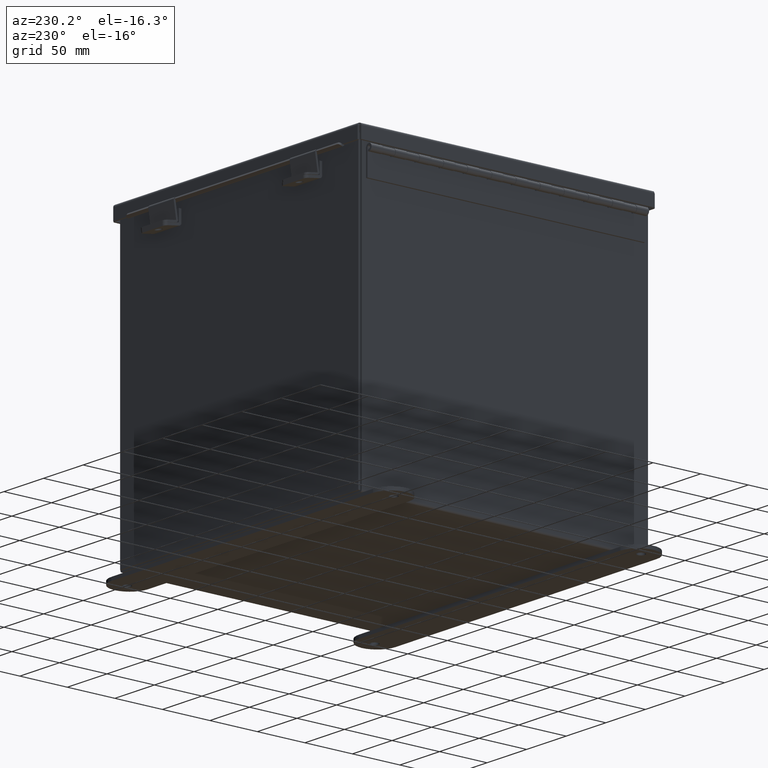
[diagram: clean part render]
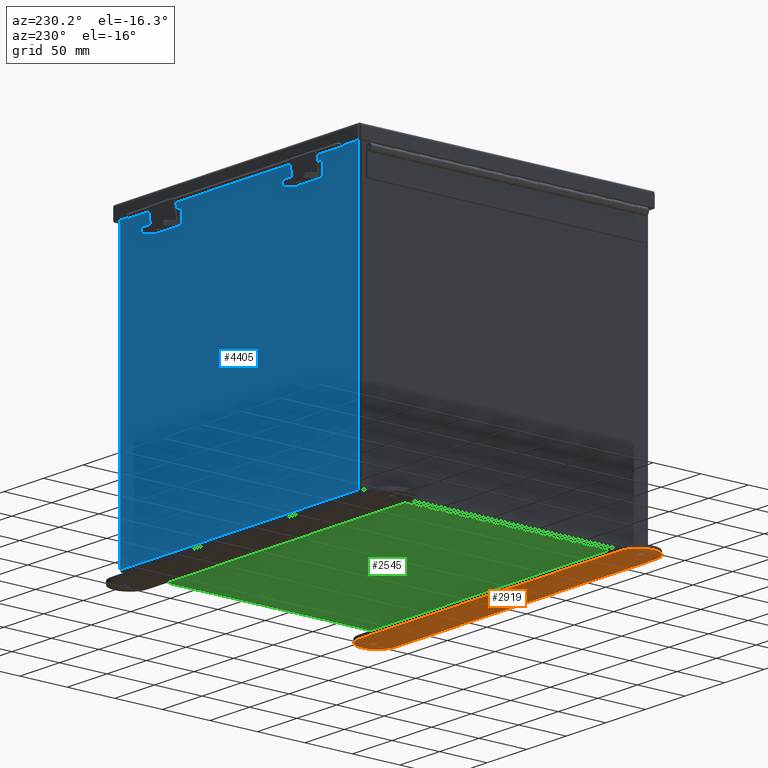
[diagram: same view with three faces highlighted in distinct colors, each labeled with its STEP entity id]
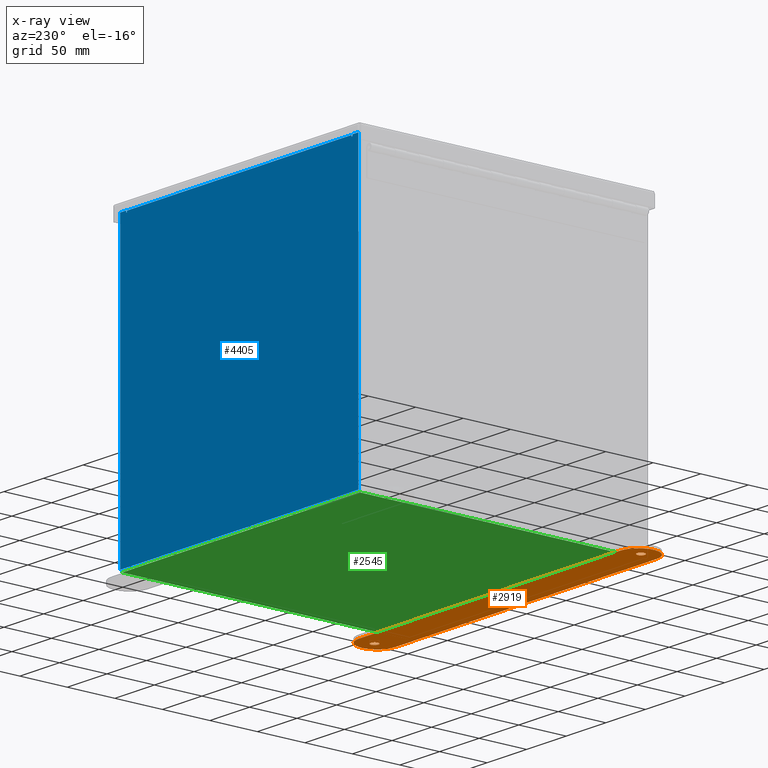
[diagram: x-ray of the same camera — body ghosted, the three highlighted faces saturated]
A machine part, auxiliary view with three faces highlighted in distinct colors.
The next image is the same camera in x-ray (body ghosted, the three faces saturated) — at least one of them is partly hidden behind the body in this view.
Their STEP definitions:

[orange] entity #2919 — the highlighted planar face has unit normal (0, 0, -1).
#137 = EDGE_CURVE ( 'NONE', #4159, #7635, #5931, .T. ) ;
#167 = DIRECTION ( 'NONE',  ( -1.000000000000000000, 0.0000000000000000000, 0.0000000000000000000 ) ) ;
#220 = FACE_OUTER_BOUND ( 'NONE', #10847, .T. ) ;
#361 = EDGE_CURVE ( 'NONE', #15255, #7829, #3553, .T. ) ;
#790 = DIRECTION ( 'NONE',  ( 0.0000000000000000000, 0.0000000000000000000, 1.000000000000000000 ) ) ;
#1419 = VERTEX_POINT ( 'NONE', #9755 ) ;
#1526 = DIRECTION ( 'NONE',  ( 0.0000000000000000000, 0.0000000000000000000, -1.000000000000000000 ) ) ;
#1582 = EDGE_LOOP ( 'NONE', ( #10873, #9685 ) ) ;
#2477 = ORIENTED_EDGE ( 'NONE', *, *, #11376, .F. ) ;
#2882 = DIRECTION ( 'NONE',  ( -1.000000000000000000, 0.0000000000000000000, 0.0000000000000000000 ) ) ;
#2919 = ADVANCED_FACE ( 'NONE', ( #220, #9912, #3330 ), #3342, .T. ) ;
#3089 = EDGE_CURVE ( 'NONE', #4683, #7867, #13599, .T. ) ;
#3099 = EDGE_CURVE ( 'NONE', #7635, #4159, #5158, .T. ) ;
#3265 = CIRCLE ( 'NONE', #12278, 0.7499999999999993300 ) ;
#3280 = DIRECTION ( 'NONE',  ( 0.0000000000000000000, 0.0000000000000000000, -1.000000000000000000 ) ) ;
#3330 = FACE_BOUND ( 'NONE', #7453, .T. ) ;
#3342 = PLANE ( 'NONE',  #7942 ) ;
#3364 = AXIS2_PLACEMENT_3D ( 'NONE', #7463, #3280, #2882 ) ;
#3553 = CIRCLE ( 'NONE', #6623, 0.7500000000000015500 ) ;
#3605 = CIRCLE ( 'NONE', #5114, 0.1564999999999992800 ) ;
#4014 = CARTESIAN_POINT ( 'NONE',  ( 6.468500000000001500, 0.4120940649496078200, -0.1345000000000000100 ) ) ;
#4102 = CARTESIAN_POINT ( 'NONE',  ( -6.625000000000000900, 0.4120940649496078200, -0.1345000000000000100 ) ) ;
#4131 = DIRECTION ( 'NONE',  ( 1.000000000000000000, -1.260852920152736700E-016, 0.0000000000000000000 ) ) ;
#4159 = VERTEX_POINT ( 'NONE', #8085 ) ;
#4240 = CARTESIAN_POINT ( 'NONE',  ( 6.500000000000000000, -0.3379059350503894100, -0.1345000000000000100 ) ) ;
#4506 = CARTESIAN_POINT ( 'NONE',  ( 6.500000000000000000, 0.4120940649496122000, -0.1345000000000000100 ) ) ;
#4683 = VERTEX_POINT ( 'NONE', #5246 ) ;
#5019 = CARTESIAN_POINT ( 'NONE',  ( 6.500000000000000000, 0.4120940649496122000, -0.1345000000000000100 ) ) ;
#5114 = AXIS2_PLACEMENT_3D ( 'NONE', #11142, #1526, #14580 ) ;
#5158 = CIRCLE ( 'NONE', #14461, 0.1564999999999992800 ) ;
#5246 = CARTESIAN_POINT ( 'NONE',  ( -6.500000000000000000, -0.3379059350503871900, -0.1345000000000000100 ) ) ;
#5292 = CARTESIAN_POINT ( 'NONE',  ( 6.781499999999999400, 0.4120940649496078200, -0.1345000000000000100 ) ) ;
#5294 = EDGE_CURVE ( 'NONE', #15406, #10562, #14594, .T. ) ;
#5731 = CARTESIAN_POINT ( 'NONE',  ( -6.625000000000000900, 0.4120940649496078200, -0.1345000000000000100 ) ) ;
#5931 = CIRCLE ( 'NONE', #6911, 0.1564999999999992800 ) ;
#6623 = AXIS2_PLACEMENT_3D ( 'NONE', #13944, #790, #10002 ) ;
#6823 = CARTESIAN_POINT ( 'NONE',  ( -6.781499999999999400, 0.4120940649496078200, -0.1345000000000000100 ) ) ;
#6911 = AXIS2_PLACEMENT_3D ( 'NONE', #5731, #13479, #15629 ) ;
#6970 = VECTOR ( 'NONE', #8971, 39.37007874015748100 ) ;
#7014 = CARTESIAN_POINT ( 'NONE',  ( -6.500000000000000000, -0.3379059350503871900, -0.1345000000000000100 ) ) ;
#7453 = EDGE_LOOP ( 'NONE', ( #13866, #8876 ) ) ;
#7463 = CARTESIAN_POINT ( 'NONE',  ( 6.625000000000000900, 0.4120940649496078200, -0.1345000000000000100 ) ) ;
#7495 = EDGE_CURVE ( 'NONE', #1419, #4683, #3265, .T. ) ;
#7635 = VERTEX_POINT ( 'NONE', #6823 ) ;
#7829 = VERTEX_POINT ( 'NONE', #9958 ) ;
#7867 = VERTEX_POINT ( 'NONE', #4240 ) ;
#7942 = AXIS2_PLACEMENT_3D ( 'NONE', #4506, #14165, #12973 ) ;
#8085 = CARTESIAN_POINT ( 'NONE',  ( -6.468500000000001500, 0.4120940649496078200, -0.1345000000000000100 ) ) ;
#8191 = EDGE_CURVE ( 'NONE', #7867, #15255, #13729, .T. ) ;
#8338 = VECTOR ( 'NONE', #4131, 39.37007874015748100 ) ;
#8876 = ORIENTED_EDGE ( 'NONE', *, *, #5294, .F. ) ;
#8971 = DIRECTION ( 'NONE',  ( -1.000000000000000000, -1.260852920152736700E-016, 0.0000000000000000000 ) ) ;
#9685 = ORIENTED_EDGE ( 'NONE', *, *, #3099, .T. ) ;
#9755 = CARTESIAN_POINT ( 'NONE',  ( -6.500000000000000000, 1.162094064949612800, -0.1345000000000000100 ) ) ;
#9912 = FACE_BOUND ( 'NONE', #1582, .T. ) ;
#9958 = CARTESIAN_POINT ( 'NONE',  ( 6.500000000000000000, 1.162094064949613600, -0.1345000000000000100 ) ) ;
#10002 = DIRECTION ( 'NONE',  ( -1.000000000000000000, 0.0000000000000000000, 0.0000000000000000000 ) ) ;
#10300 = CARTESIAN_POINT ( 'NONE',  ( -6.500000000000000000, 0.4120940649496122000, -0.1345000000000000100 ) ) ;
#10425 = DIRECTION ( 'NONE',  ( 1.000000000000000000, 0.0000000000000000000, 0.0000000000000000000 ) ) ;
#10521 = ORIENTED_EDGE ( 'NONE', *, *, #361, .F. ) ;
#10562 = VERTEX_POINT ( 'NONE', #5292 ) ;
#10847 = EDGE_LOOP ( 'NONE', ( #10964, #11973, #12218, #2477, #10521 ) ) ;
#10873 = ORIENTED_EDGE ( 'NONE', *, *, #137, .T. ) ;
#10952 = DIRECTION ( 'NONE',  ( 0.0000000000000000000, 0.0000000000000000000, 1.000000000000000000 ) ) ;
#10964 = ORIENTED_EDGE ( 'NONE', *, *, #8191, .F. ) ;
#11142 = CARTESIAN_POINT ( 'NONE',  ( 6.625000000000000900, 0.4120940649496078200, -0.1345000000000000100 ) ) ;
#11192 = EDGE_CURVE ( 'NONE', #10562, #15406, #3605, .T. ) ;
#11376 = EDGE_CURVE ( 'NONE', #7829, #1419, #13438, .T. ) ;
#11614 = CARTESIAN_POINT ( 'NONE',  ( 7.250000000000001800, 0.4120940649496122000, -0.1345000000000000100 ) ) ;
#11973 = ORIENTED_EDGE ( 'NONE', *, *, #3089, .F. ) ;
#12218 = ORIENTED_EDGE ( 'NONE', *, *, #7495, .F. ) ;
#12278 = AXIS2_PLACEMENT_3D ( 'NONE', #10300, #10952, #10425 ) ;
#12973 = DIRECTION ( 'NONE',  ( -1.000000000000000000, 0.0000000000000000000, 0.0000000000000000000 ) ) ;
#13105 = DIRECTION ( 'NONE',  ( -1.000000000000000000, 0.0000000000000000000, 0.0000000000000000000 ) ) ;
#13290 = AXIS2_PLACEMENT_3D ( 'NONE', #5019, #15108, #167 ) ;
#13438 = LINE ( 'NONE', #14602, #6970 ) ;
#13479 = DIRECTION ( 'NONE',  ( -0.0000000000000000000, -0.0000000000000000000, 1.000000000000000000 ) ) ;
#13599 = LINE ( 'NONE', #7014, #8338 ) ;
#13729 = CIRCLE ( 'NONE', #13290, 0.7500000000000015500 ) ;
#13866 = ORIENTED_EDGE ( 'NONE', *, *, #11192, .F. ) ;
#13944 = CARTESIAN_POINT ( 'NONE',  ( 6.500000000000000000, 0.4120940649496122000, -0.1345000000000000100 ) ) ;
#14165 = DIRECTION ( 'NONE',  ( 0.0000000000000000000, 0.0000000000000000000, -1.000000000000000000 ) ) ;
#14461 = AXIS2_PLACEMENT_3D ( 'NONE', #4102, #15027, #13105 ) ;
#14580 = DIRECTION ( 'NONE',  ( -1.000000000000000000, 0.0000000000000000000, 0.0000000000000000000 ) ) ;
#14594 = CIRCLE ( 'NONE', #3364, 0.1564999999999992800 ) ;
#14602 = CARTESIAN_POINT ( 'NONE',  ( -6.500000000000000000, 1.162094064949612800, -0.1345000000000000100 ) ) ;
#15027 = DIRECTION ( 'NONE',  ( -0.0000000000000000000, -0.0000000000000000000, 1.000000000000000000 ) ) ;
#15108 = DIRECTION ( 'NONE',  ( 0.0000000000000000000, 0.0000000000000000000, 1.000000000000000000 ) ) ;
#15255 = VERTEX_POINT ( 'NONE', #11614 ) ;
#15406 = VERTEX_POINT ( 'NONE', #4014 ) ;
#15629 = DIRECTION ( 'NONE',  ( -1.000000000000000000, 0.0000000000000000000, 0.0000000000000000000 ) ) ;

[blue] entity #4405 — the highlighted planar face has unit normal (0, -1, 0).
#135 = VERTEX_POINT ( 'NONE', #6203 ) ;
#311 = VERTEX_POINT ( 'NONE', #2651 ) ;
#589 = CARTESIAN_POINT ( 'NONE',  ( 5.582299999999999200, 0.0000000000000000000, 5.874949999999999200 ) ) ;
#638 = CARTESIAN_POINT ( 'NONE',  ( 5.925300000000000000, 0.0000000000000000000, 5.925300000000000000 ) ) ;
#813 = VECTOR ( 'NONE', #10334, 39.37007874015748100 ) ;
#856 = ORIENTED_EDGE ( 'NONE', *, *, #8754, .F. ) ;
#966 = VERTEX_POINT ( 'NONE', #12940 ) ;
#1051 = DIRECTION ( 'NONE',  ( 1.000000000000000000, 0.0000000000000000000, 0.0000000000000000000 ) ) ;
#1157 = DIRECTION ( 'NONE',  ( 1.000000000000000000, 0.0000000000000000000, -1.844192188523290300E-016 ) ) ;
#1237 = DIRECTION ( 'NONE',  ( 0.0000000000000000000, 0.0000000000000000000, -1.000000000000000000 ) ) ;
#1470 = EDGE_CURVE ( 'NONE', #5878, #12349, #13820, .T. ) ;
#1483 = CARTESIAN_POINT ( 'NONE',  ( 5.600975000000000000, 0.0000000000000000000, 5.874949999999999200 ) ) ;
#1527 = EDGE_CURVE ( 'NONE', #966, #135, #6087, .T. ) ;
#1635 = VECTOR ( 'NONE', #1051, 39.37007874015748100 ) ;
#1917 = ORIENTED_EDGE ( 'NONE', *, *, #14123, .T. ) ;
#2089 = CARTESIAN_POINT ( 'NONE',  ( 5.582300000000000000, 0.0000000000000000000, 5.912300000000000100 ) ) ;
#2514 = DIRECTION ( 'NONE',  ( 0.0000000000000000000, 0.0000000000000000000, -1.000000000000000000 ) ) ;
#2589 = DIRECTION ( 'NONE',  ( 0.0000000000000000000, 0.0000000000000000000, -1.000000000000000000 ) ) ;
#2651 = CARTESIAN_POINT ( 'NONE',  ( 5.925300000000000000, 0.0000000000000000000, -5.925300000000001800 ) ) ;
#2665 = EDGE_CURVE ( 'NONE', #9450, #135, #14262, .T. ) ;
#3318 = CARTESIAN_POINT ( 'NONE',  ( -5.582299999999999200, 0.0000000000000000000, 0.0000000000000000000 ) ) ;
#3904 = CARTESIAN_POINT ( 'NONE',  ( 5.619649999999999100, 0.0000000000000000000, 5.925300000000000000 ) ) ;
#4069 = EDGE_CURVE ( 'NONE', #11234, #5878, #14242, .T. ) ;
#4197 = DIRECTION ( 'NONE',  ( 0.0000000000000000000, 0.0000000000000000000, -1.000000000000000000 ) ) ;
#4405 = ADVANCED_FACE ( 'NONE', ( #9520 ), #7876, .F. ) ;
#4496 = LINE ( 'NONE', #10256, #4931 ) ;
#4645 = CARTESIAN_POINT ( 'NONE',  ( -5.582299999999999200, 1.092739197465705300E-015, 5.912300000000006300 ) ) ;
#4789 = ORIENTED_EDGE ( 'NONE', *, *, #2665, .T. ) ;
#4931 = VECTOR ( 'NONE', #10781, 39.37007874015748100 ) ;
#5595 = ORIENTED_EDGE ( 'NONE', *, *, #6901, .T. ) ;
#5687 = EDGE_CURVE ( 'NONE', #12349, #8947, #4496, .T. ) ;
#5736 = EDGE_CURVE ( 'NONE', #11924, #9450, #15527, .T. ) ;
#5878 = VERTEX_POINT ( 'NONE', #8960 ) ;
#6087 = LINE ( 'NONE', #10488, #8296 ) ;
#6203 = CARTESIAN_POINT ( 'NONE',  ( -5.619649999999999100, 0.0000000000000000000, 5.925300000000000000 ) ) ;
#6229 = AXIS2_PLACEMENT_3D ( 'NONE', #1483, #12465, #8750 ) ;
#6320 = ORIENTED_EDGE ( 'NONE', *, *, #7693, .T. ) ;
#6457 = AXIS2_PLACEMENT_3D ( 'NONE', #11972, #10719, #10138 ) ;
#6704 = DIRECTION ( 'NONE',  ( -0.0000000000000000000, 1.000000000000000000, -0.0000000000000000000 ) ) ;
#6837 = DIRECTION ( 'NONE',  ( 0.0000000000000000000, 0.0000000000000000000, 1.000000000000000000 ) ) ;
#6901 = EDGE_CURVE ( 'NONE', #11868, #8947, #9313, .T. ) ;
#7051 = CARTESIAN_POINT ( 'NONE',  ( -5.925300000000000000, 0.0000000000000000000, -5.925300000000001800 ) ) ;
#7067 = VECTOR ( 'NONE', #11430, 39.37007874015748100 ) ;
#7312 = VECTOR ( 'NONE', #1157, 39.37007874015748100 ) ;
#7504 = LINE ( 'NONE', #10804, #10724 ) ;
#7644 = CARTESIAN_POINT ( 'NONE',  ( -5.582300000000000000, 1.092739197465705300E-015, 5.912300000000006300 ) ) ;
#7693 = EDGE_CURVE ( 'NONE', #7912, #311, #8877, .T. ) ;
#7757 = VECTOR ( 'NONE', #2514, 39.37007874015748100 ) ;
#7876 = PLANE ( 'NONE',  #6457 ) ;
#7912 = VERTEX_POINT ( 'NONE', #638 ) ;
#8296 = VECTOR ( 'NONE', #6837, 39.37007874015748100 ) ;
#8716 = CARTESIAN_POINT ( 'NONE',  ( -5.925300000000000000, 0.0000000000000000000, 5.925300000000000000 ) ) ;
#8750 = DIRECTION ( 'NONE',  ( 0.0000000000000000000, 0.0000000000000000000, -1.000000000000000000 ) ) ;
#8754 = EDGE_CURVE ( 'NONE', #11868, #13988, #10276, .T. ) ;
#8877 = LINE ( 'NONE', #11960, #7757 ) ;
#8911 = DIRECTION ( 'NONE',  ( 1.000000000000000000, 0.0000000000000000000, -1.844192188523290300E-016 ) ) ;
#8947 = VERTEX_POINT ( 'NONE', #2089 ) ;
#8960 = CARTESIAN_POINT ( 'NONE',  ( 5.619650000000000000, 0.0000000000000000000, 5.874949999999999200 ) ) ;
#9020 = CARTESIAN_POINT ( 'NONE',  ( -5.925300000000000000, 0.0000000000000000000, -5.925300000000001800 ) ) ;
#9088 = ORIENTED_EDGE ( 'NONE', *, *, #13040, .F. ) ;
#9313 = LINE ( 'NONE', #7644, #1635 ) ;
#9450 = VERTEX_POINT ( 'NONE', #15126 ) ;
#9520 = FACE_OUTER_BOUND ( 'NONE', #12876, .T. ) ;
#9808 = CARTESIAN_POINT ( 'NONE',  ( -5.582299999999999200, 0.0000000000000000000, 5.874949999999999200 ) ) ;
#10138 = DIRECTION ( 'NONE',  ( 0.0000000000000000000, -0.0000000000000000000, -1.000000000000000000 ) ) ;
#10256 = CARTESIAN_POINT ( 'NONE',  ( 5.582300000000000000, 0.0000000000000000000, 0.0000000000000000000 ) ) ;
#10276 = LINE ( 'NONE', #3318, #11997 ) ;
#10334 = DIRECTION ( 'NONE',  ( -0.0000000000000000000, -0.0000000000000000000, 1.000000000000000000 ) ) ;
#10392 = VECTOR ( 'NONE', #4197, 39.37007874015748100 ) ;
#10488 = CARTESIAN_POINT ( 'NONE',  ( -5.619649999999999100, 0.0000000000000000000, 0.0000000000000000000 ) ) ;
#10507 = CARTESIAN_POINT ( 'NONE',  ( 5.619650000000000000, 0.0000000000000000000, 0.0000000000000000000 ) ) ;
#10719 = DIRECTION ( 'NONE',  ( 0.0000000000000000000, -1.000000000000000000, 0.0000000000000000000 ) ) ;
#10724 = VECTOR ( 'NONE', #8911, 39.37007874015748100 ) ;
#10781 = DIRECTION ( 'NONE',  ( 0.0000000000000000000, 0.0000000000000000000, 1.000000000000000000 ) ) ;
#10804 = CARTESIAN_POINT ( 'NONE',  ( -5.925300000000000000, 0.0000000000000000000, 5.925300000000000000 ) ) ;
#11234 = VERTEX_POINT ( 'NONE', #3904 ) ;
#11430 = DIRECTION ( 'NONE',  ( -1.000000000000000000, -0.0000000000000000000, -0.0000000000000000000 ) ) ;
#11531 = ORIENTED_EDGE ( 'NONE', *, *, #5687, .F. ) ;
#11589 = AXIS2_PLACEMENT_3D ( 'NONE', #13999, #6704, #2589 ) ;
#11646 = ORIENTED_EDGE ( 'NONE', *, *, #5736, .T. ) ;
#11868 = VERTEX_POINT ( 'NONE', #4645 ) ;
#11924 = VERTEX_POINT ( 'NONE', #9020 ) ;
#11960 = CARTESIAN_POINT ( 'NONE',  ( 5.925300000000000000, 0.0000000000000000000, 5.925300000000000000 ) ) ;
#11972 = CARTESIAN_POINT ( 'NONE',  ( 0.0000000000000000000, 0.0000000000000000000, 0.0000000000000000000 ) ) ;
#11997 = VECTOR ( 'NONE', #1237, 39.37007874015748100 ) ;
#12125 = ORIENTED_EDGE ( 'NONE', *, *, #1470, .F. ) ;
#12349 = VERTEX_POINT ( 'NONE', #589 ) ;
#12465 = DIRECTION ( 'NONE',  ( -0.0000000000000000000, 1.000000000000000000, -0.0000000000000000000 ) ) ;
#12629 = CIRCLE ( 'NONE', #11589, 0.01867500000000058700 ) ;
#12648 = EDGE_CURVE ( 'NONE', #11234, #7912, #7504, .T. ) ;
#12685 = ORIENTED_EDGE ( 'NONE', *, *, #1527, .F. ) ;
#12876 = EDGE_LOOP ( 'NONE', ( #12685, #9088, #856, #5595, #11531, #12125, #13952, #15115, #6320, #1917, #11646, #4789 ) ) ;
#12940 = CARTESIAN_POINT ( 'NONE',  ( -5.619649999999998300, 0.0000000000000000000, 5.874949999999999200 ) ) ;
#13040 = EDGE_CURVE ( 'NONE', #13988, #966, #12629, .T. ) ;
#13543 = LINE ( 'NONE', #7051, #7067 ) ;
#13820 = CIRCLE ( 'NONE', #6229, 0.01867500000000058700 ) ;
#13952 = ORIENTED_EDGE ( 'NONE', *, *, #4069, .F. ) ;
#13988 = VERTEX_POINT ( 'NONE', #9808 ) ;
#13999 = CARTESIAN_POINT ( 'NONE',  ( -5.600974999999998300, 0.0000000000000000000, 5.874949999999999200 ) ) ;
#14123 = EDGE_CURVE ( 'NONE', #311, #11924, #13543, .T. ) ;
#14242 = LINE ( 'NONE', #10507, #10392 ) ;
#14262 = LINE ( 'NONE', #8716, #7312 ) ;
#14946 = CARTESIAN_POINT ( 'NONE',  ( -5.925300000000000000, 0.0000000000000000000, 5.925300000000000000 ) ) ;
#15115 = ORIENTED_EDGE ( 'NONE', *, *, #12648, .T. ) ;
#15126 = CARTESIAN_POINT ( 'NONE',  ( -5.925300000000000000, 0.0000000000000000000, 5.925300000000000000 ) ) ;
#15527 = LINE ( 'NONE', #14946, #813 ) ;

[green] entity #2545 — the highlighted planar face has unit normal (0, 0, -1).
#944 = CARTESIAN_POINT ( 'NONE',  ( 5.912300000000002800, -5.925300000000000000, -0.07470000000000000300 ) ) ;
#965 = DIRECTION ( 'NONE',  ( -1.000000000000000000, -0.0000000000000000000, -0.0000000000000000000 ) ) ;
#1171 = LINE ( 'NONE', #7390, #8889 ) ;
#1673 = DIRECTION ( 'NONE',  ( 0.0000000000000000000, 0.0000000000000000000, -1.000000000000000000 ) ) ;
#1816 = LINE ( 'NONE', #14231, #11620 ) ;
#1969 = DIRECTION ( 'NONE',  ( -0.0000000000000000000, 1.000000000000000000, -0.0000000000000000000 ) ) ;
#2203 = LINE ( 'NONE', #11778, #14688 ) ;
#2288 = FACE_OUTER_BOUND ( 'NONE', #7611, .T. ) ;
#2545 = ADVANCED_FACE ( 'NONE', ( #2288 ), #12640, .T. ) ;
#2618 = CARTESIAN_POINT ( 'NONE',  ( 5.912300000000002800, 5.925299999999997300, -0.07469999999999994700 ) ) ;
#2971 = ORIENTED_EDGE ( 'NONE', *, *, #15325, .F. ) ;
#4620 = CARTESIAN_POINT ( 'NONE',  ( 5.912300000000002800, 5.925300000000000000, -0.07469999999999994700 ) ) ;
#6052 = CARTESIAN_POINT ( 'NONE',  ( -5.912299999999998300, 5.925300000000000000, -0.07470000000000000300 ) ) ;
#6139 = CARTESIAN_POINT ( 'NONE',  ( 0.0000000000000000000, 0.0000000000000000000, -0.07470000000000000300 ) ) ;
#6194 = EDGE_CURVE ( 'NONE', #11144, #7628, #12291, .T. ) ;
#6848 = CARTESIAN_POINT ( 'NONE',  ( -5.912299999999998300, -5.925299999999999100, -0.07469999999999994700 ) ) ;
#7023 = VERTEX_POINT ( 'NONE', #6848 ) ;
#7301 = EDGE_CURVE ( 'NONE', #7023, #11044, #1171, .T. ) ;
#7390 = CARTESIAN_POINT ( 'NONE',  ( -5.912299999999998300, -5.925300000000000000, -0.07469999999999994700 ) ) ;
#7611 = EDGE_LOOP ( 'NONE', ( #2971, #9994, #10901, #8164 ) ) ;
#7628 = VERTEX_POINT ( 'NONE', #944 ) ;
#8164 = ORIENTED_EDGE ( 'NONE', *, *, #7301, .T. ) ;
#8404 = VECTOR ( 'NONE', #14329, 39.37007874015748100 ) ;
#8821 = EDGE_CURVE ( 'NONE', #7023, #7628, #1816, .T. ) ;
#8889 = VECTOR ( 'NONE', #1969, 39.37007874015748100 ) ;
#9994 = ORIENTED_EDGE ( 'NONE', *, *, #6194, .T. ) ;
#10157 = DIRECTION ( 'NONE',  ( -1.000000000000000000, 0.0000000000000000000, -0.0000000000000000000 ) ) ;
#10901 = ORIENTED_EDGE ( 'NONE', *, *, #8821, .F. ) ;
#11044 = VERTEX_POINT ( 'NONE', #6052 ) ;
#11144 = VERTEX_POINT ( 'NONE', #2618 ) ;
#11620 = VECTOR ( 'NONE', #14773, 39.37007874015748100 ) ;
#11778 = CARTESIAN_POINT ( 'NONE',  ( -5.999999999999998200, 5.925300000000000000, -0.07470000000000000300 ) ) ;
#12291 = LINE ( 'NONE', #4620, #8404 ) ;
#12640 = PLANE ( 'NONE',  #13442 ) ;
#13442 = AXIS2_PLACEMENT_3D ( 'NONE', #6139, #1673, #10157 ) ;
#14231 = CARTESIAN_POINT ( 'NONE',  ( -5.999999999999998200, -5.925300000000000000, -0.07470000000000000300 ) ) ;
#14329 = DIRECTION ( 'NONE',  ( -0.0000000000000000000, -1.000000000000000000, -0.0000000000000000000 ) ) ;
#14688 = VECTOR ( 'NONE', #965, 39.37007874015748100 ) ;
#14773 = DIRECTION ( 'NONE',  ( 1.000000000000000000, 0.0000000000000000000, 0.0000000000000000000 ) ) ;
#15325 = EDGE_CURVE ( 'NONE', #11144, #11044, #2203, .T. ) ;